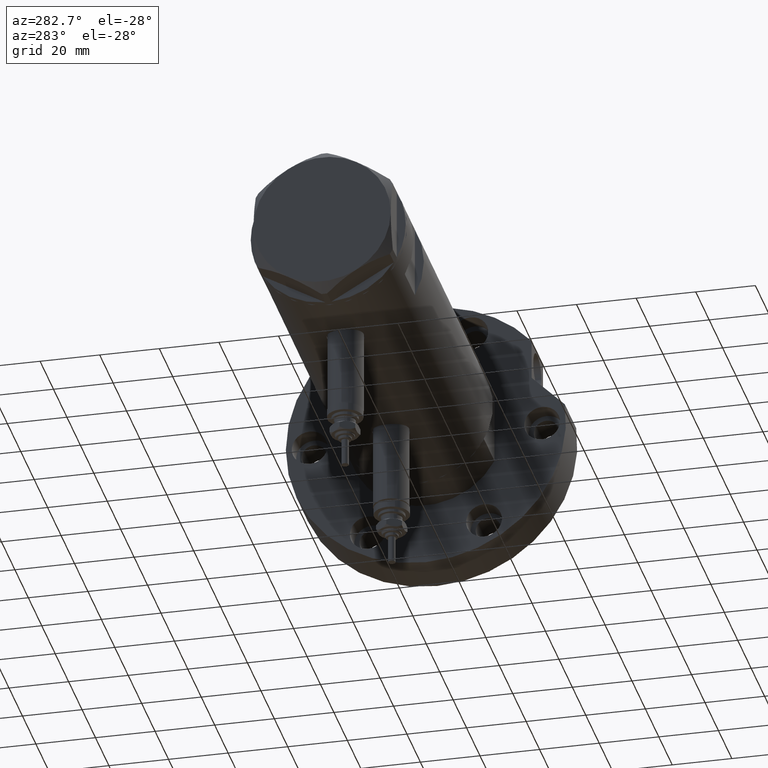
[diagram: clean part render]
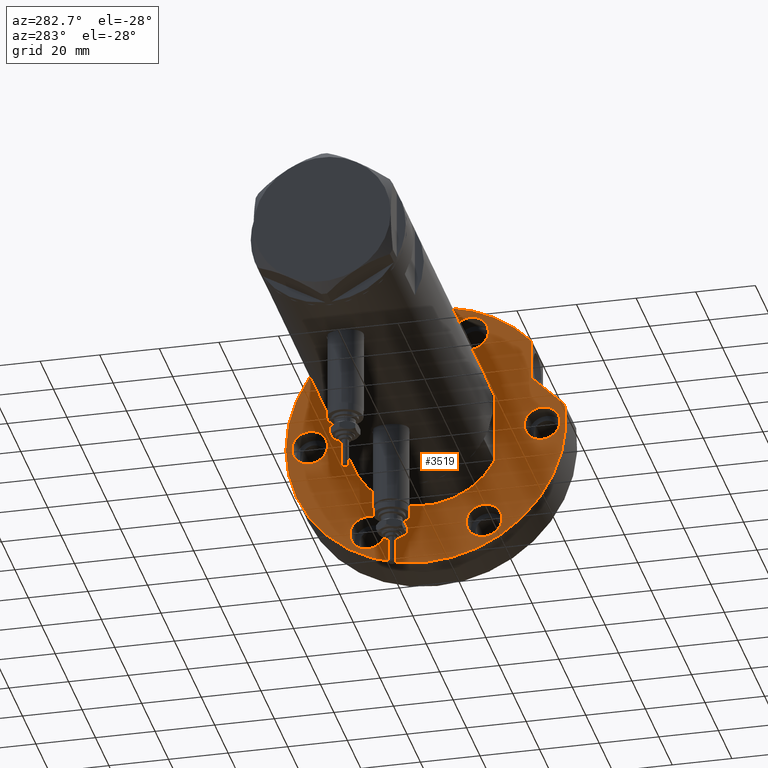
[diagram: same view with one face highlighted and labeled with its STEP entity id]
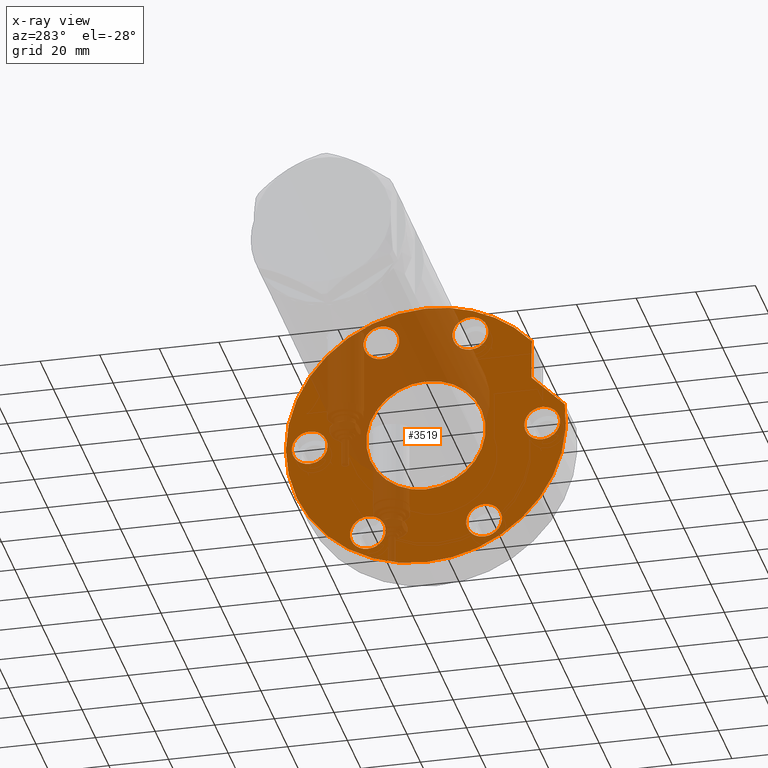
[diagram: x-ray of the same camera — body ghosted, the highlighted face saturated]
A machine part, auxiliary view. The second image highlights one B-rep face of the part: STEP entity #3519.
The next image is the same camera in x-ray: the body ghosted, the highlighted face saturated — about 37% of this face is hidden behind the body in this view.
In plain terms, the highlighted planar face has unit normal (1, 0, -0).
Its self-contained STEP definition (entity closure, byte-faithful):
#10 = DIRECTION ( 'NONE',  ( 0.000000000000000000, 0.000000000000000000, -1.000000000000000000 ) ) ;
#24 = DIRECTION ( 'NONE',  ( 0.000000000000000000, 0.000000000000000000, 1.000000000000000000 ) ) ;
#37 = DIRECTION ( 'NONE',  ( -1.000000000000000000, 0.000000000000000000, 0.000000000000000000 ) ) ;
#125 = EDGE_CURVE ( 'NONE', #3100, #5833, #6543, .T. ) ;
#128 = VERTEX_POINT ( 'NONE', #1770 ) ;
#340 = ORIENTED_EDGE ( 'NONE', *, *, #7164, .F. ) ;
#377 = VERTEX_POINT ( 'NONE', #4189 ) ;
#401 = CARTESIAN_POINT ( 'NONE',  ( 36.03130176794011419, 14.92465386223865842, 0.000000000000000000 ) ) ;
#420 = CARTESIAN_POINT ( 'NONE',  ( -6.000000000000000888, 39.00000000000000000, 0.000000000000000000 ) ) ;
#432 = CIRCLE ( 'NONE', #6862, 5.999999999999998224 ) ;
#471 = FACE_BOUND ( 'NONE', #3848, .T. ) ;
#481 = ORIENTED_EDGE ( 'NONE', *, *, #1250, .F. ) ;
#497 = EDGE_LOOP ( 'NONE', ( #340, #6559 ) ) ;
#564 = VERTEX_POINT ( 'NONE', #7950 ) ;
#595 = ORIENTED_EDGE ( 'NONE', *, *, #4618, .F. ) ;
#771 = CARTESIAN_POINT ( 'NONE',  ( 0.000000000000000000, -39.00000000000000000, 0.000000000000000000 ) ) ;
#869 = CARTESIAN_POINT ( 'NONE',  ( 30.03130176794011774, -14.92465386223865842, 0.000000000000000000 ) ) ;
#911 = ORIENTED_EDGE ( 'NONE', *, *, #1598, .T. ) ;
#934 = CARTESIAN_POINT ( 'NONE',  ( 0.000000000000000000, 0.000000000000000000, 0.000000000000000000 ) ) ;
#935 = CIRCLE ( 'NONE', #6856, 46.99999999999999289 ) ;
#1001 = DIRECTION ( 'NONE',  ( 0.000000000000000000, 0.000000000000000000, -1.000000000000000000 ) ) ;
#1010 = ORIENTED_EDGE ( 'NONE', *, *, #1402, .T. ) ;
#1021 = FACE_BOUND ( 'NONE', #497, .T. ) ;
#1052 = DIRECTION ( 'NONE',  ( 0.000000000000000000, 0.000000000000000000, -1.000000000000000000 ) ) ;
#1172 = AXIS2_PLACEMENT_3D ( 'NONE', #6565, #1052, #4850 ) ;
#1179 = DIRECTION ( 'NONE',  ( 0.000000000000000000, 0.000000000000000000, -1.000000000000000000 ) ) ;
#1193 = VERTEX_POINT ( 'NONE', #7530 ) ;
#1250 = EDGE_CURVE ( 'NONE', #7250, #1885, #3326, .T. ) ;
#1328 = VERTEX_POINT ( 'NONE', #3807 ) ;
#1373 = EDGE_LOOP ( 'NONE', ( #4873, #4958 ) ) ;
#1402 = EDGE_CURVE ( 'NONE', #6219, #1885, #4571, .T. ) ;
#1532 = CARTESIAN_POINT ( 'NONE',  ( 0.000000000000000000, -39.00000000000000000, 0.000000000000000000 ) ) ;
#1548 = EDGE_CURVE ( 'NONE', #4275, #564, #3735, .T. ) ;
#1598 = EDGE_CURVE ( 'NONE', #1788, #6219, #4689, .T. ) ;
#1704 = EDGE_CURVE ( 'NONE', #1193, #3582, #6435, .T. ) ;
#1734 = CARTESIAN_POINT ( 'NONE',  ( 0.000000000000000000, 39.00000000000000000, 0.000000000000000000 ) ) ;
#1770 = CARTESIAN_POINT ( 'NONE',  ( 6.000000000000000888, 39.00000000000000000, 0.000000000000000000 ) ) ;
#1788 = VERTEX_POINT ( 'NONE', #2082 ) ;
#1862 = AXIS2_PLACEMENT_3D ( 'NONE', #3598, #3697, #6181 ) ;
#1885 = VERTEX_POINT ( 'NONE', #4878 ) ;
#2016 = AXIS2_PLACEMENT_3D ( 'NONE', #6615, #24, #4893 ) ;
#2023 = DIRECTION ( 'NONE',  ( 1.000000000000000000, 0.000000000000000000, 0.000000000000000000 ) ) ;
#2082 = CARTESIAN_POINT ( 'NONE',  ( 6.092310621118299352, 46.60347359688769586, 0.000000000000000000 ) ) ;
#2090 = EDGE_LOOP ( 'NONE', ( #4061, #5957 ) ) ;
#2106 = VERTEX_POINT ( 'NONE', #7021 ) ;
#2113 = ORIENTED_EDGE ( 'NONE', *, *, #6633, .F. ) ;
#2138 = AXIS2_PLACEMENT_3D ( 'NONE', #771, #4926, #3788 ) ;
#2259 = DIRECTION ( 'NONE',  ( -1.000000000000000000, 0.000000000000000000, 0.000000000000000000 ) ) ;
#2262 = DIRECTION ( 'NONE',  ( 0.000000000000000000, 0.000000000000000000, -1.000000000000000000 ) ) ;
#2313 = DIRECTION ( 'NONE',  ( 0.000000000000000000, 0.000000000000000000, 1.000000000000000000 ) ) ;
#2325 = CARTESIAN_POINT ( 'NONE',  ( 0.000000000000000000, 0.000000000000000000, 0.000000000000000000 ) ) ;
#2332 = CARTESIAN_POINT ( 'NONE',  ( 36.03130176794011419, 14.92465386223865842, 0.000000000000000000 ) ) ;
#2367 = CIRCLE ( 'NONE', #7741, 6.000000000000005329 ) ;
#2460 = ORIENTED_EDGE ( 'NONE', *, *, #4196, .T. ) ;
#2496 = CARTESIAN_POINT ( 'NONE',  ( 36.03130176794011419, -14.92465386223865842, 0.000000000000000000 ) ) ;
#2545 = DIRECTION ( 'NONE',  ( 1.000000000000000000, 0.000000000000000000, 0.000000000000000000 ) ) ;
#2661 = CARTESIAN_POINT ( 'NONE',  ( 0.000000000000000000, 0.000000000000000000, 0.000000000000000000 ) ) ;
#2845 = FACE_BOUND ( 'NONE', #2090, .T. ) ;
#2852 = DIRECTION ( 'NONE',  ( 0.000000000000000000, 0.000000000000000000, 1.000000000000000000 ) ) ;
#2880 = CIRCLE ( 'NONE', #7240, 6.000000000000000888 ) ;
#2921 = FACE_OUTER_BOUND ( 'NONE', #5200, .T. ) ;
#2985 = CIRCLE ( 'NONE', #1862, 6.000000000000000888 ) ;
#3013 = ORIENTED_EDGE ( 'NONE', *, *, #6901, .T. ) ;
#3100 = VERTEX_POINT ( 'NONE', #7426 ) ;
#3121 = DIRECTION ( 'NONE',  ( 0.000000000000000000, 0.000000000000000000, 1.000000000000000000 ) ) ;
#3250 = AXIS2_PLACEMENT_3D ( 'NONE', #2332, #6667, #4779 ) ;
#3283 = EDGE_LOOP ( 'NONE', ( #5461, #7651 ) ) ;
#3299 = CARTESIAN_POINT ( 'NONE',  ( 0.000000000000000000, 0.000000000000000000, 0.000000000000000000 ) ) ;
#3312 = CARTESIAN_POINT ( 'NONE',  ( 0.000000000000000000, 0.000000000000000000, 0.000000000000000000 ) ) ;
#3325 = VERTEX_POINT ( 'NONE', #6717 ) ;
#3326 = CIRCLE ( 'NONE', #7834, 46.99999999999999289 ) ;
#3374 = CARTESIAN_POINT ( 'NONE',  ( 17.22217135699461110, 35.47361286101150313, 0.000000000000000000 ) ) ;
#3428 = FACE_BOUND ( 'NONE', #1373, .T. ) ;
#3510 = FACE_BOUND ( 'NONE', #6425, .T. ) ;
#3519 = ADVANCED_FACE ( 'NONE', ( #2845, #1021, #3581, #3428, #3547, #3510, #471, #2921 ), #5885, .F. ) ;
#3536 = DIRECTION ( 'NONE',  ( 0.7071067811865511255, -0.7071067811865440200, -0.000000000000000000 ) ) ;
#3547 = FACE_BOUND ( 'NONE', #7650, .T. ) ;
#3581 = FACE_BOUND ( 'NONE', #3283, .T. ) ;
#3582 = VERTEX_POINT ( 'NONE', #3714 ) ;
#3598 = CARTESIAN_POINT ( 'NONE',  ( 0.000000000000000000, 39.00000000000000000, 0.000000000000000000 ) ) ;
#3610 = CARTESIAN_POINT ( 'NONE',  ( -33.77499074759315079, 19.49999999999992539, 0.000000000000000000 ) ) ;
#3611 = CARTESIAN_POINT ( 'NONE',  ( -39.77499074759315079, 19.49999999999992539, 0.000000000000000000 ) ) ;
#3629 = AXIS2_PLACEMENT_3D ( 'NONE', #401, #1001, #7109 ) ;
#3697 = DIRECTION ( 'NONE',  ( 0.000000000000000000, 0.000000000000000000, -1.000000000000000000 ) ) ;
#3714 = CARTESIAN_POINT ( 'NONE',  ( -27.77499074759301578, -19.50000000000015277, 0.000000000000000000 ) ) ;
#3731 = DIRECTION ( 'NONE',  ( 0.000000000000000000, 0.000000000000000000, -1.000000000000000000 ) ) ;
#3735 = CIRCLE ( 'NONE', #1172, 5.999999999999998224 ) ;
#3769 = CIRCLE ( 'NONE', #5067, 5.999999999999998224 ) ;
#3788 = DIRECTION ( 'NONE',  ( -1.000000000000000000, 0.000000000000000000, 0.000000000000000000 ) ) ;
#3807 = CARTESIAN_POINT ( 'NONE',  ( 20.00000000000000000, 0.000000000000000000, 0.000000000000000000 ) ) ;
#3848 = EDGE_LOOP ( 'NONE', ( #2460, #3013 ) ) ;
#3888 = AXIS2_PLACEMENT_3D ( 'NONE', #3312, #2852, #4556 ) ;
#4025 = VERTEX_POINT ( 'NONE', #869 ) ;
#4061 = ORIENTED_EDGE ( 'NONE', *, *, #6399, .F. ) ;
#4126 = AXIS2_PLACEMENT_3D ( 'NONE', #6815, #1179, #7419 ) ;
#4189 = CARTESIAN_POINT ( 'NONE',  ( 42.03130176794011419, 14.92465386223865842, 0.000000000000000000 ) ) ;
#4196 = EDGE_CURVE ( 'NONE', #1328, #2106, #7351, .T. ) ;
#4275 = VERTEX_POINT ( 'NONE', #3611 ) ;
#4282 = DIRECTION ( 'NONE',  ( -1.000000000000000000, 0.000000000000000000, 0.000000000000000000 ) ) ;
#4346 = CARTESIAN_POINT ( 'NONE',  ( 30.03130176794011774, 14.92465386223865842, 0.000000000000000000 ) ) ;
#4353 = CARTESIAN_POINT ( 'NONE',  ( -33.77499074759302289, -19.50000000000015277, 0.000000000000000000 ) ) ;
#4363 = CARTESIAN_POINT ( 'NONE',  ( -46.99999999999999289, 0.000000000000000000, 0.000000000000000000 ) ) ;
#4556 = DIRECTION ( 'NONE',  ( 1.000000000000000000, 0.000000000000000000, 0.000000000000000000 ) ) ;
#4571 = LINE ( 'NONE', #3374, #5914 ) ;
#4618 = EDGE_CURVE ( 'NONE', #6746, #7250, #935, .T. ) ;
#4657 = DIRECTION ( 'NONE',  ( 1.000000000000000000, 0.000000000000000000, -0.000000000000000000 ) ) ;
#4689 = LINE ( 'NONE', #6528, #7075 ) ;
#4766 = ORIENTED_EDGE ( 'NONE', *, *, #6201, .F. ) ;
#4779 = DIRECTION ( 'NONE',  ( -1.000000000000000000, 0.000000000000000000, 0.000000000000000000 ) ) ;
#4850 = DIRECTION ( 'NONE',  ( -1.000000000000000000, 0.000000000000000000, 0.000000000000000000 ) ) ;
#4873 = ORIENTED_EDGE ( 'NONE', *, *, #125, .F. ) ;
#4878 = CARTESIAN_POINT ( 'NONE',  ( 30.83217135699462830, 35.47361286101148892, 0.000000000000000000 ) ) ;
#4893 = DIRECTION ( 'NONE',  ( 1.000000000000000000, 0.000000000000000000, 0.000000000000000000 ) ) ;
#4903 = DIRECTION ( 'NONE',  ( 0.000000000000000000, 0.000000000000000000, -1.000000000000000000 ) ) ;
#4926 = DIRECTION ( 'NONE',  ( 0.000000000000000000, 0.000000000000000000, -1.000000000000000000 ) ) ;
#4958 = ORIENTED_EDGE ( 'NONE', *, *, #7817, .F. ) ;
#5067 = AXIS2_PLACEMENT_3D ( 'NONE', #5251, #2262, #5329 ) ;
#5200 = EDGE_LOOP ( 'NONE', ( #911, #1010, #481, #595, #5375 ) ) ;
#5207 = VERTEX_POINT ( 'NONE', #4346 ) ;
#5251 = CARTESIAN_POINT ( 'NONE',  ( 36.03130176794011419, -14.92465386223865842, 0.000000000000000000 ) ) ;
#5287 = DIRECTION ( 'NONE',  ( 0.000000000000000000, 0.000000000000000000, 1.000000000000000000 ) ) ;
#5302 = AXIS2_PLACEMENT_3D ( 'NONE', #3299, #7052, #2023 ) ;
#5329 = DIRECTION ( 'NONE',  ( -1.000000000000000000, 0.000000000000000000, 0.000000000000000000 ) ) ;
#5375 = ORIENTED_EDGE ( 'NONE', *, *, #5720, .F. ) ;
#5461 = ORIENTED_EDGE ( 'NONE', *, *, #6459, .F. ) ;
#5472 = CARTESIAN_POINT ( 'NONE',  ( 17.22217135699460755, 35.47361286101150313, 0.000000000000000000 ) ) ;
#5570 = CIRCLE ( 'NONE', #3250, 5.999999999999998224 ) ;
#5720 = EDGE_CURVE ( 'NONE', #1788, #6746, #7516, .T. ) ;
#5833 = VERTEX_POINT ( 'NONE', #7503 ) ;
#5835 = DIRECTION ( 'NONE',  ( 1.000000000000000000, -1.019675812477181606E-15, 0.000000000000000000 ) ) ;
#5885 = PLANE ( 'NONE',  #7483 ) ;
#5897 = AXIS2_PLACEMENT_3D ( 'NONE', #1532, #4903, #37 ) ;
#5914 = VECTOR ( 'NONE', #5835, 1000.000000000000000 ) ;
#5957 = ORIENTED_EDGE ( 'NONE', *, *, #7116, .F. ) ;
#6008 = DIRECTION ( 'NONE',  ( 0.000000000000000000, 0.000000000000000000, -1.000000000000000000 ) ) ;
#6134 = DIRECTION ( 'NONE',  ( -1.000000000000000000, 0.000000000000000000, 0.000000000000000000 ) ) ;
#6179 = DIRECTION ( 'NONE',  ( -1.000000000000000000, 0.000000000000000000, 0.000000000000000000 ) ) ;
#6181 = DIRECTION ( 'NONE',  ( -1.000000000000000000, 0.000000000000000000, 0.000000000000000000 ) ) ;
#6201 = EDGE_CURVE ( 'NONE', #564, #4275, #432, .T. ) ;
#6219 = VERTEX_POINT ( 'NONE', #5472 ) ;
#6262 = ORIENTED_EDGE ( 'NONE', *, *, #1548, .F. ) ;
#6330 = CARTESIAN_POINT ( 'NONE',  ( 46.99999999999999289, 5.755839955992559063E-15, 0.000000000000000000 ) ) ;
#6399 = EDGE_CURVE ( 'NONE', #6733, #128, #2985, .T. ) ;
#6425 = EDGE_LOOP ( 'NONE', ( #6262, #4766 ) ) ;
#6426 = EDGE_CURVE ( 'NONE', #377, #5207, #7502, .T. ) ;
#6435 = CIRCLE ( 'NONE', #4126, 6.000000000000005329 ) ;
#6459 = EDGE_CURVE ( 'NONE', #4025, #3325, #3769, .T. ) ;
#6528 = CARTESIAN_POINT ( 'NONE',  ( 17.22217135699461110, 35.47361286101150313, 0.000000000000000000 ) ) ;
#6543 = CIRCLE ( 'NONE', #5897, 6.000000000000000000 ) ;
#6559 = ORIENTED_EDGE ( 'NONE', *, *, #6426, .F. ) ;
#6565 = CARTESIAN_POINT ( 'NONE',  ( -33.77499074759315079, 19.49999999999992539, 0.000000000000000000 ) ) ;
#6615 = CARTESIAN_POINT ( 'NONE',  ( 0.000000000000000000, 0.000000000000000000, 0.000000000000000000 ) ) ;
#6633 = EDGE_CURVE ( 'NONE', #3582, #1193, #2367, .T. ) ;
#6667 = DIRECTION ( 'NONE',  ( 0.000000000000000000, 0.000000000000000000, -1.000000000000000000 ) ) ;
#6717 = CARTESIAN_POINT ( 'NONE',  ( 42.03130176794011419, -14.92465386223865842, 0.000000000000000000 ) ) ;
#6733 = VERTEX_POINT ( 'NONE', #420 ) ;
#6746 = VERTEX_POINT ( 'NONE', #4363 ) ;
#6815 = CARTESIAN_POINT ( 'NONE',  ( -33.77499074759302289, -19.50000000000015277, 0.000000000000000000 ) ) ;
#6856 = AXIS2_PLACEMENT_3D ( 'NONE', #934, #2313, #7160 ) ;
#6862 = AXIS2_PLACEMENT_3D ( 'NONE', #3610, #10, #4282 ) ;
#6873 = AXIS2_PLACEMENT_3D ( 'NONE', #2496, #7343, #6134 ) ;
#6901 = EDGE_CURVE ( 'NONE', #2106, #1328, #6984, .T. ) ;
#6984 = CIRCLE ( 'NONE', #5302, 20.00000000000000000 ) ;
#7021 = CARTESIAN_POINT ( 'NONE',  ( -20.00000000000000000, 2.449293598294706513E-15, 0.000000000000000000 ) ) ;
#7052 = DIRECTION ( 'NONE',  ( 0.000000000000000000, 0.000000000000000000, 1.000000000000000000 ) ) ;
#7075 = VECTOR ( 'NONE', #3536, 999.9999999999998863 ) ;
#7109 = DIRECTION ( 'NONE',  ( -1.000000000000000000, 0.000000000000000000, 0.000000000000000000 ) ) ;
#7116 = EDGE_CURVE ( 'NONE', #128, #6733, #2880, .T. ) ;
#7123 = CIRCLE ( 'NONE', #2138, 6.000000000000000000 ) ;
#7160 = DIRECTION ( 'NONE',  ( 1.000000000000000000, 0.000000000000000000, 0.000000000000000000 ) ) ;
#7164 = EDGE_CURVE ( 'NONE', #5207, #377, #5570, .T. ) ;
#7182 = EDGE_CURVE ( 'NONE', #3325, #4025, #7883, .T. ) ;
#7237 = ORIENTED_EDGE ( 'NONE', *, *, #1704, .F. ) ;
#7240 = AXIS2_PLACEMENT_3D ( 'NONE', #1734, #6008, #2259 ) ;
#7250 = VERTEX_POINT ( 'NONE', #6330 ) ;
#7343 = DIRECTION ( 'NONE',  ( 0.000000000000000000, 0.000000000000000000, -1.000000000000000000 ) ) ;
#7351 = CIRCLE ( 'NONE', #3888, 20.00000000000000000 ) ;
#7419 = DIRECTION ( 'NONE',  ( -1.000000000000000000, 0.000000000000000000, 0.000000000000000000 ) ) ;
#7426 = CARTESIAN_POINT ( 'NONE',  ( -6.000000000000000000, -39.00000000000000000, 0.000000000000000000 ) ) ;
#7483 = AXIS2_PLACEMENT_3D ( 'NONE', #2325, #5287, #4657 ) ;
#7502 = CIRCLE ( 'NONE', #3629, 5.999999999999998224 ) ;
#7503 = CARTESIAN_POINT ( 'NONE',  ( 6.000000000000000000, -39.00000000000000000, 0.000000000000000000 ) ) ;
#7516 = CIRCLE ( 'NONE', #2016, 46.99999999999999289 ) ;
#7530 = CARTESIAN_POINT ( 'NONE',  ( -39.77499074759302289, -19.50000000000015277, 0.000000000000000000 ) ) ;
#7650 = EDGE_LOOP ( 'NONE', ( #7237, #2113 ) ) ;
#7651 = ORIENTED_EDGE ( 'NONE', *, *, #7182, .F. ) ;
#7741 = AXIS2_PLACEMENT_3D ( 'NONE', #4353, #3731, #6179 ) ;
#7817 = EDGE_CURVE ( 'NONE', #5833, #3100, #7123, .T. ) ;
#7834 = AXIS2_PLACEMENT_3D ( 'NONE', #2661, #3121, #2545 ) ;
#7883 = CIRCLE ( 'NONE', #6873, 5.999999999999998224 ) ;
#7950 = CARTESIAN_POINT ( 'NONE',  ( -27.77499074759315434, 19.49999999999992539, 0.000000000000000000 ) ) ;